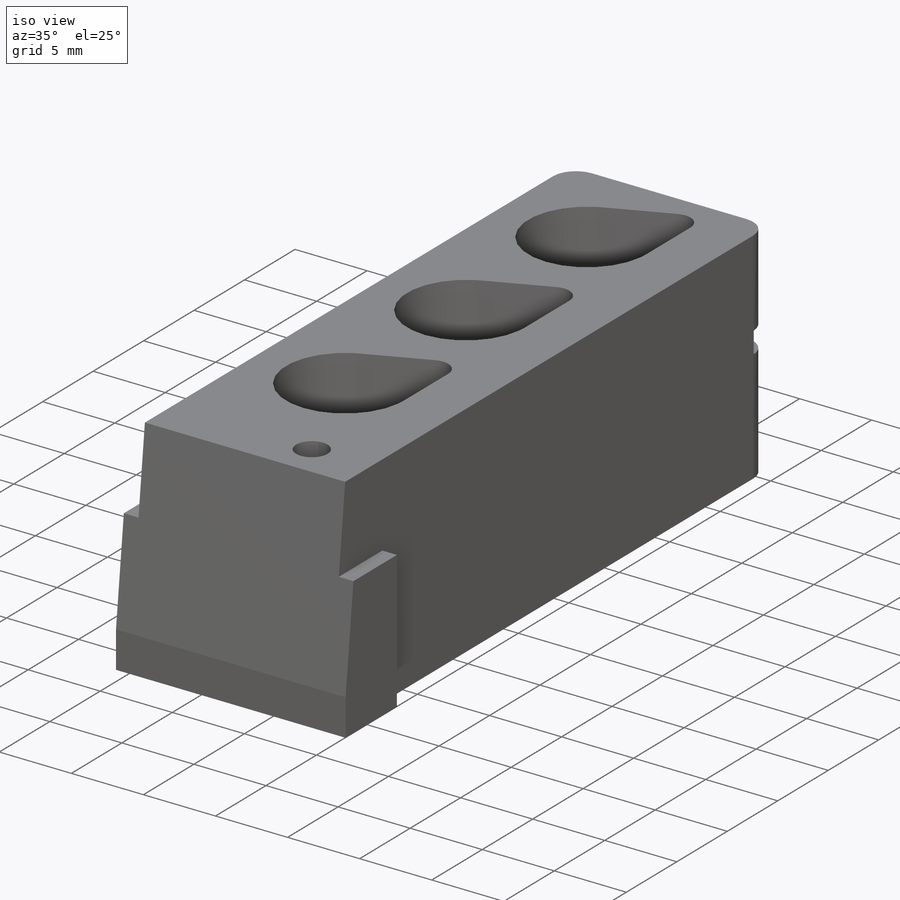
[diagram: iso view]
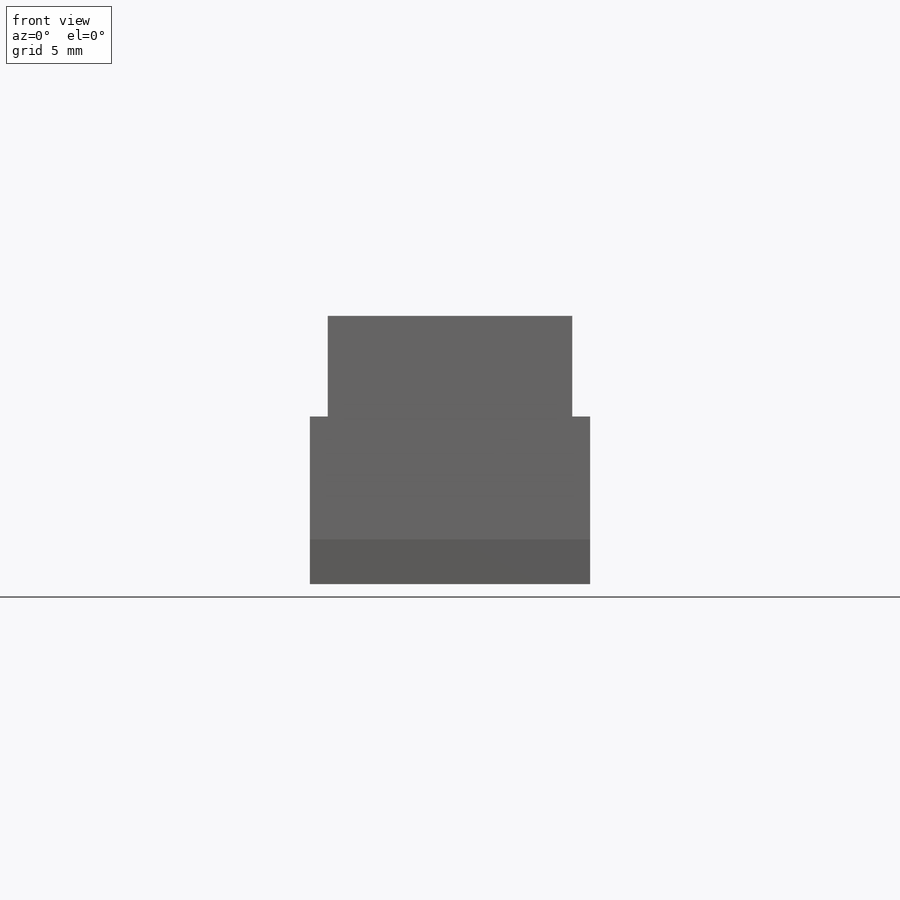
[diagram: front view]
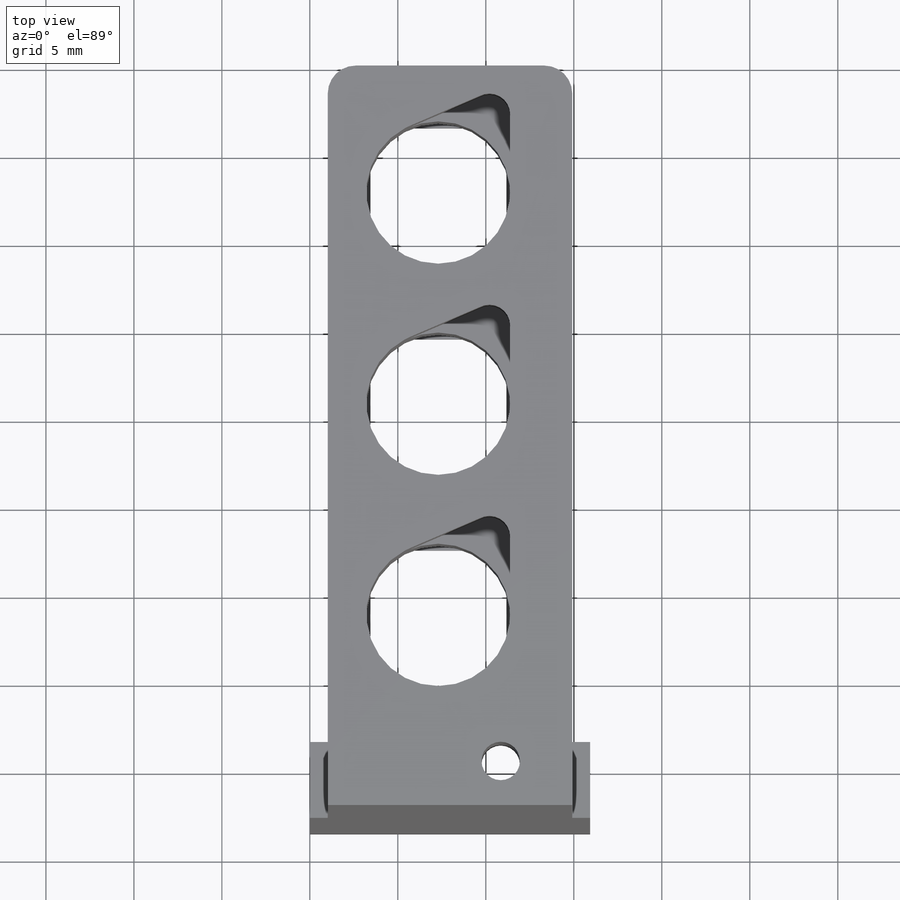
[diagram: top view]
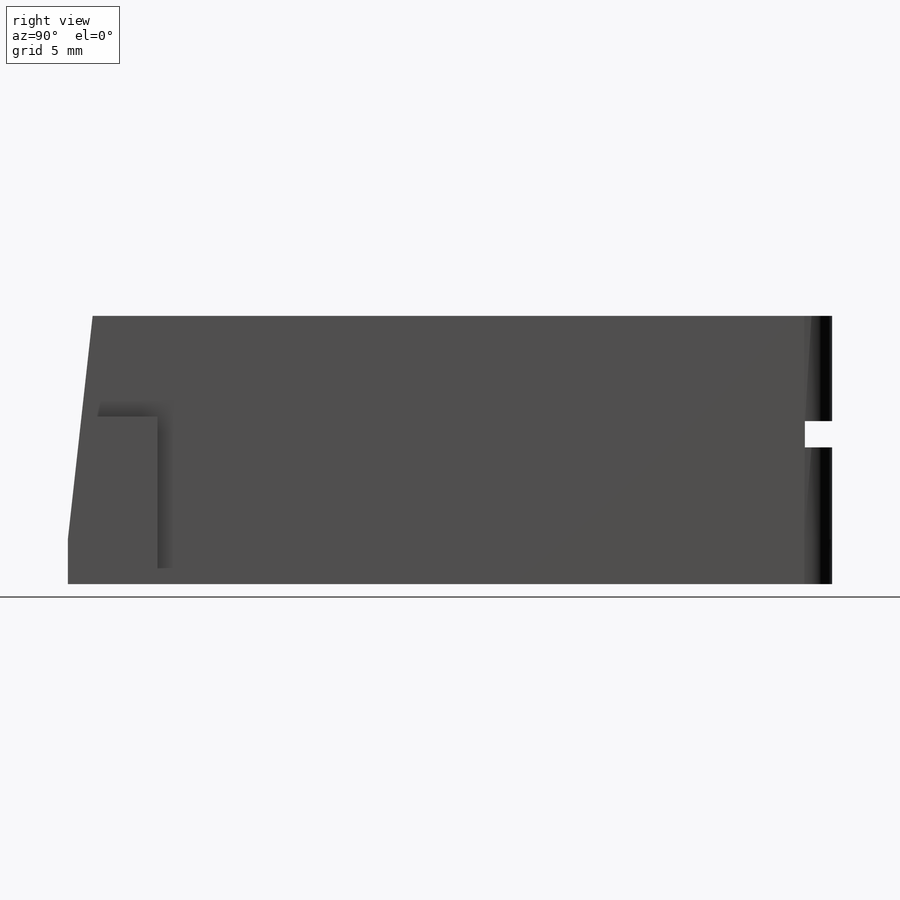
[diagram: right view]
SOLIDWORKS PART (.sldprt)
format: sldprt  version: not decoded by parser v0  size: 590,336 bytes
history: native  units: mm
features: sketch x16, cut_extrude x8, extrude x2, hole x2, fillet x2, material x1 (+16 scaffold rows collapsed)
feature tree (47):
  scaffold x16  (default folders/planes/origin — collapsed)
  material  "ABS"
  sketch  "Sketch1"  dims[D1=12.7mm D2=15.9258mm]
  extrude  "Extrude1"  Depth=43.434mm
  sketch  "Sketch2"  dims[D1=42.0243mm]
  cut_extrude  "Extrude2"  [1 undecoded]
  sketch  "Sketch3"  dims[D1=6.985mm]
  cut_extrude  "Extrude3"  Depth=1.016mm
  sketch  "Sketch4"  dims[D1=0.0mm]
  cut_extrude  "Extrude4"  Depth=1.016mm
  sketch  "Sketch5"  dims[D1=5.9817mm D2=1.4859mm]
  cut_extrude  "Extrude5"  Depth=1.5494mm
  sketch  "Sketch6"  dims[D1=3.9116mm D2=5.08mm]
  hole  "#2-64 Tapped Hole1"  Diameter=2.1844mm Depth=12.7mm
  sketch  "3DSketch1"
  sketch  "Sketch7"  dims[hole-wizard template sketch: 59 standard entries collapsed; hole parameters kept: c18.Thread Major Dia.=2.1844mm c18.Thru Tap Drill Depth=12.7mm]
  sketch  "Sketch8"  dims[D2=8.1661mm D1=2.1971mm D3=2.3749mm D4=10.8458mm]
  cut_extrude  "Extrude6"  Depth=4.6736mm
  sketch  "Sketch9"
  cut_extrude  "Extrude7"  [1 undecoded]
  sketch  "Sketch10"  dims[D1=0.0mm]
  extrude  "Extrude8"  Depth=2.54mm
  sketch  "Sketch11"  dims[D1=~3.86715mm D2=~3.86715mm D3=~3.86715mm D4=~3.86715mm D5=~3.86715mm D6=~3.86715mm D7=~3.86715mm D8=~3.86715mm]
  cut_extrude  "Extrude9"  [1 undecoded]
  sketch  "Sketch12"  dims[D1=~0.61595mm D2=~0.61595mm D3=~0.61595mm]
  cut_extrude  "Extrude10"  Depth=1.5748mm
  sketch  "Sketch13"
  hole  "CSK for #2 Flat Head Machine Screw (100)2"  Diameter=2.4384mm Depth=15.240025mm
  sketch  "3DSketch2"
  sketch  "Sketch14"  dims[hole-wizard template sketch: 55 standard entries collapsed; hole parameters kept: c17.Thru Hole Depth=~15.240025mm c17.Near C'Sink Dia.=4.3688mm c17.D4=~3.666174mm c17.Near C'Sink Angle=100.0deg]
  fillet  "Fillet1"  Radius=1.5875mm
  fillet  "Fillet2"  Radius=1.5875mm
decode coverage: 23 of 30 modeling features carry decoded parameters
note: ~ marks probable driven/reference dimensions
note: 3 parameter values undecoded
summary: no parameter record found for 3 features
note: suppression state not decoded; provenance and decode notes live in map.json
